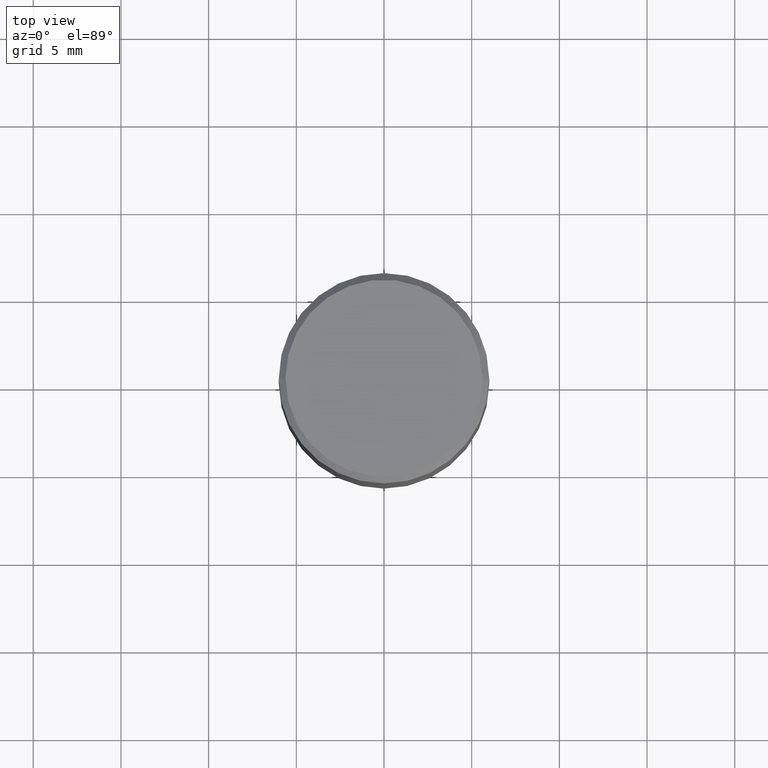
[diagram: clean part render]
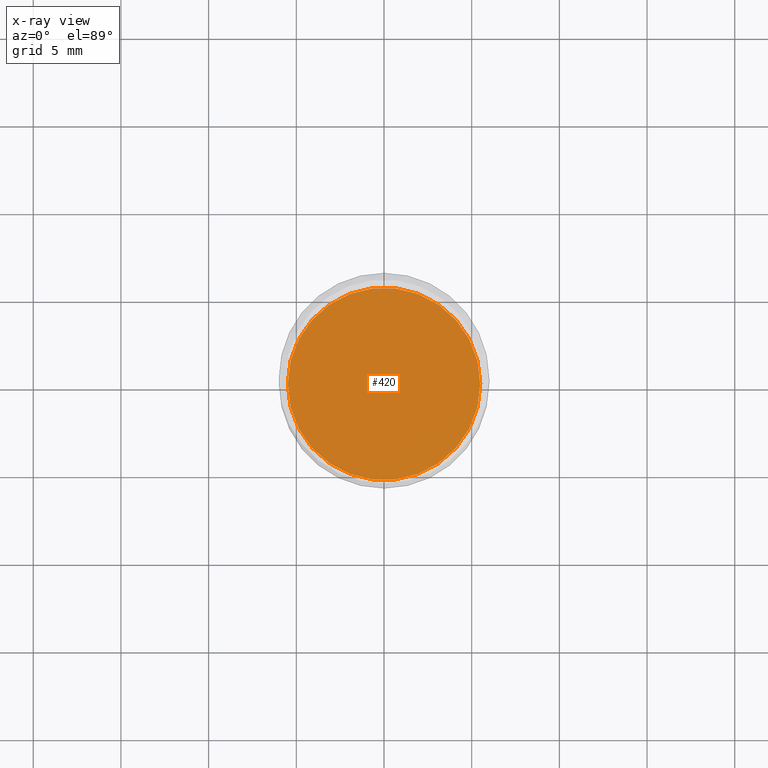
[diagram: x-ray — body ghosted, one internal face saturated and labeled with its STEP entity id]
A machine part, top view, then the same camera in x-ray: the body is ghosted and one INTERNAL B-rep face — a face not visible from any outside direction — is saturated and labeled: STEP entity #420.
In plain terms, the highlighted planar face has unit normal (-0, 0, 1).
Its self-contained STEP definition (entity closure, byte-faithful):
#15 = PLANE ( 'NONE',  #60 ) ;
#17 = ORIENTED_EDGE ( 'NONE', *, *, #290, .F. ) ;
#45 = FACE_OUTER_BOUND ( 'NONE', #230, .T. ) ;
#50 = CARTESIAN_POINT ( 'NONE',  ( 1.838992542251222813E-29, -2.625593966810045497E-15, -0.7520000000000001128 ) ) ;
#59 = CIRCLE ( 'NONE', #220, 0.2160500000000000198 ) ;
#60 = AXIS2_PLACEMENT_3D ( 'NONE', #50, #185, #253 ) ;
#97 = CIRCLE ( 'NONE', #320, 0.2160500000000000198 ) ;
#158 = CARTESIAN_POINT ( 'NONE',  ( 0.2160500000000000198, -4.134263053324163313E-15, -0.7519999999999998908 ) ) ;
#162 = EDGE_CURVE ( 'NONE', #348, #361, #59, .T. ) ;
#175 = DIRECTION ( 'NONE',  ( 1.000000000000000000, -6.982962677686266711E-15, 0.000000000000000000 ) ) ;
#182 = DIRECTION ( 'NONE',  ( -2.445468806185136597E-29, 3.491481338843145583E-15, 1.000000000000000000 ) ) ;
#185 = DIRECTION ( 'NONE',  ( -2.438088387897960049E-29, 3.491481338843145188E-15, 1.000000000000000000 ) ) ;
#218 = CARTESIAN_POINT ( 'NONE',  ( 1.838992542251222532E-29, -2.625593966810045103E-15, -0.7519999999999998908 ) ) ;
#220 = AXIS2_PLACEMENT_3D ( 'NONE', #385, #389, #175 ) ;
#227 = ORIENTED_EDGE ( 'NONE', *, *, #162, .F. ) ;
#230 = EDGE_LOOP ( 'NONE', ( #227, #17 ) ) ;
#231 = CARTESIAN_POINT ( 'NONE',  ( -0.2160500000000000198, -1.087817159026237112E-15, -0.7519999999999998908 ) ) ;
#253 = DIRECTION ( 'NONE',  ( 1.000000000000000000, -6.982962677686265922E-15, 4.876176775795935793E-29 ) ) ;
#290 = EDGE_CURVE ( 'NONE', #361, #348, #97, .T. ) ;
#320 = AXIS2_PLACEMENT_3D ( 'NONE', #218, #182, #430 ) ;
#348 = VERTEX_POINT ( 'NONE', #158 ) ;
#361 = VERTEX_POINT ( 'NONE', #231 ) ;
#385 = CARTESIAN_POINT ( 'NONE',  ( 1.838992542251222532E-29, -2.625593966810045103E-15, -0.7519999999999998908 ) ) ;
#389 = DIRECTION ( 'NONE',  ( -2.445468806185136597E-29, 3.491481338843145583E-15, 1.000000000000000000 ) ) ;
#420 = ADVANCED_FACE ( 'NONE', ( #45 ), #15, .F. ) ;
#430 = DIRECTION ( 'NONE',  ( 1.000000000000000000, -6.982962677686266711E-15, 0.000000000000000000 ) ) ;